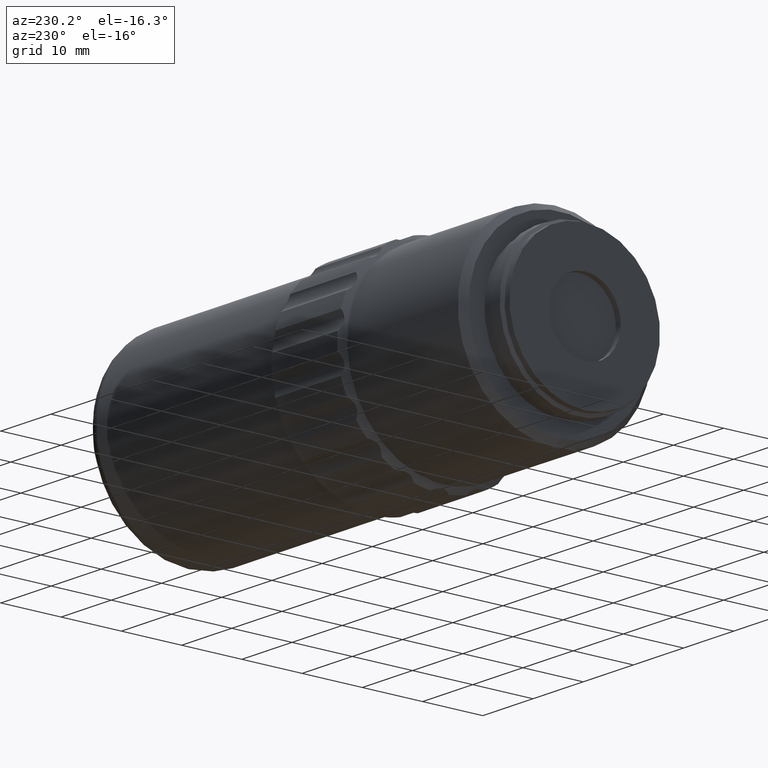
[diagram: clean part render]
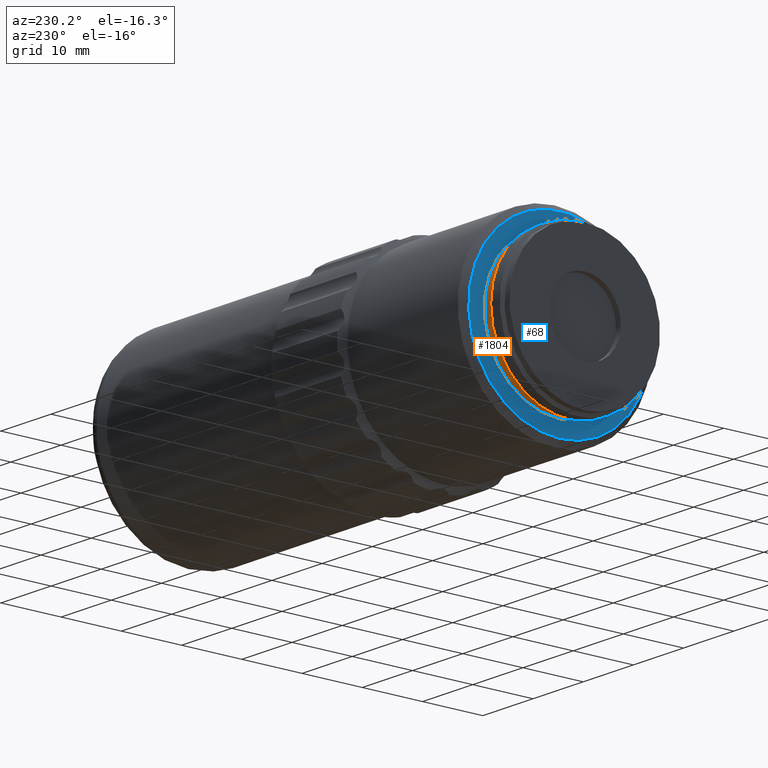
[diagram: same view with the hole feature highlighted: cylindrical wall and planar end face, labeled with their STEP entity ids]
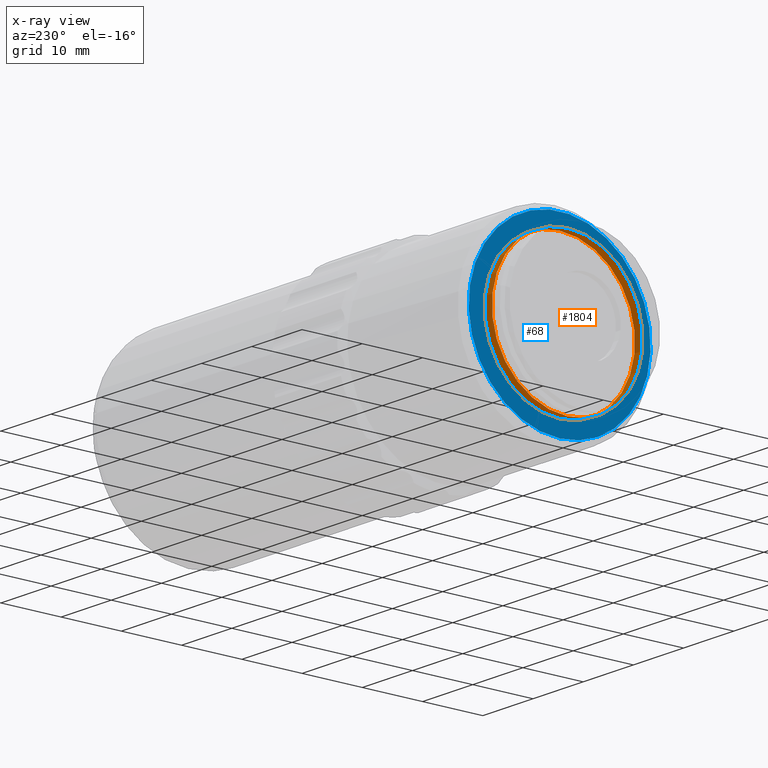
[diagram: x-ray of the same camera — body ghosted, the hole faces saturated]
A machine part, auxiliary view. The highlighted faces form one hole feature of diameter 25 mm: the cylindrical wall (entity #1804, orange) and its adjacent planar end face (entity #68, blue) — they share a circular edge in the B-rep.
The next image is the same camera in x-ray (body ghosted, the hole faces saturated) — the bore reads through the body.
Wall:
#10 = CARTESIAN_POINT ( 'NONE',  ( -4.553141965121201729, 46.02096199999999726, 12.50000000000000000 ) ) ;
#48 = CIRCLE ( 'NONE', #1205, 12.50000000000000000 ) ;
#70 = DIRECTION ( 'NONE',  ( 1.000000000000000000, -0.000000000000000000, -0.000000000000000000 ) ) ;
#301 = DIRECTION ( 'NONE',  ( 0.000000000000000000, 0.000000000000000000, 1.000000000000000000 ) ) ;
#347 = ORIENTED_EDGE ( 'NONE', *, *, #1817, .F. ) ;
#448 = FACE_OUTER_BOUND ( 'NONE', #1636, .T. ) ;
#544 = EDGE_LOOP ( 'NONE', ( #1924 ) ) ;
#582 = EDGE_CURVE ( 'NONE', #1606, #1606, #48, .T. ) ;
#710 = CARTESIAN_POINT ( 'NONE',  ( -6.053141965121201729, 46.02096199999999726, 0.000000000000000000 ) ) ;
#774 = DIRECTION ( 'NONE',  ( -1.000000000000000000, 0.000000000000000000, 0.000000000000000000 ) ) ;
#991 = CARTESIAN_POINT ( 'NONE',  ( -6.053141965121201729, 46.02096199999999726, 12.50000000000000000 ) ) ;
#1137 = CARTESIAN_POINT ( 'NONE',  ( -5.303141965121202617, 46.02096199999999726, 0.000000000000000000 ) ) ;
#1205 = AXIS2_PLACEMENT_3D ( 'NONE', #710, #70, #1867 ) ;
#1451 = AXIS2_PLACEMENT_3D ( 'NONE', #1137, #774, #2074 ) ;
#1454 = DIRECTION ( 'NONE',  ( 1.000000000000000000, -0.000000000000000000, -0.000000000000000000 ) ) ;
#1606 = VERTEX_POINT ( 'NONE', #991 ) ;
#1636 = EDGE_LOOP ( 'NONE', ( #347 ) ) ;
#1688 = AXIS2_PLACEMENT_3D ( 'NONE', #2065, #1454, #301 ) ;
#1804 = ADVANCED_FACE ( 'NONE', ( #448, #1926 ), #1915, .T. ) ;
#1817 = EDGE_CURVE ( 'NONE', #2097, #2097, #1956, .T. ) ;
#1867 = DIRECTION ( 'NONE',  ( 0.000000000000000000, 0.000000000000000000, 1.000000000000000000 ) ) ;
#1915 = CYLINDRICAL_SURFACE ( 'NONE', #1451, 12.50000000000000000 ) ;
#1924 = ORIENTED_EDGE ( 'NONE', *, *, #582, .T. ) ;
#1926 = FACE_OUTER_BOUND ( 'NONE', #544, .T. ) ;
#1956 = CIRCLE ( 'NONE', #1688, 12.50000000000000000 ) ;
#2065 = CARTESIAN_POINT ( 'NONE',  ( -4.553141965121201729, 46.02096199999999726, 0.000000000000000000 ) ) ;
#2074 = DIRECTION ( 'NONE',  ( 0.000000000000000000, 0.000000000000000000, 1.000000000000000000 ) ) ;
#2097 = VERTEX_POINT ( 'NONE', #10 ) ;
End face:
#10 = CARTESIAN_POINT ( 'NONE',  ( -4.553141965121201729, 46.02096199999999726, 12.50000000000000000 ) ) ;
#68 = ADVANCED_FACE ( 'NONE', ( #1810, #655 ), #1673, .T. ) ;
#91 = EDGE_CURVE ( 'NONE', #1438, #1438, #490, .T. ) ;
#301 = DIRECTION ( 'NONE',  ( 0.000000000000000000, 0.000000000000000000, 1.000000000000000000 ) ) ;
#490 = CIRCLE ( 'NONE', #1690, 15.09999999999999964 ) ;
#497 = CARTESIAN_POINT ( 'NONE',  ( -4.553141965121199064, 46.02096199999999726, -15.09999999999999964 ) ) ;
#655 = FACE_OUTER_BOUND ( 'NONE', #1381, .T. ) ;
#733 = AXIS2_PLACEMENT_3D ( 'NONE', #850, #828, #1663 ) ;
#828 = DIRECTION ( 'NONE',  ( -1.000000000000000000, 0.000000000000000000, 0.000000000000000000 ) ) ;
#850 = CARTESIAN_POINT ( 'NONE',  ( -4.553141965121201729, 60.32096200000000863, 0.000000000000000000 ) ) ;
#941 = EDGE_LOOP ( 'NONE', ( #1807 ) ) ;
#1013 = DIRECTION ( 'NONE',  ( 1.000000000000000000, 0.000000000000000000, -5.387339987505611015E-17 ) ) ;
#1150 = DIRECTION ( 'NONE',  ( -5.744117470121878474E-17, 0.000000000000000000, -1.000000000000000000 ) ) ;
#1358 = CARTESIAN_POINT ( 'NONE',  ( -4.553141965121198176, 46.02096199999999726, 5.387339987505588212E-17 ) ) ;
#1381 = EDGE_LOOP ( 'NONE', ( #1570 ) ) ;
#1438 = VERTEX_POINT ( 'NONE', #497 ) ;
#1454 = DIRECTION ( 'NONE',  ( 1.000000000000000000, -0.000000000000000000, -0.000000000000000000 ) ) ;
#1570 = ORIENTED_EDGE ( 'NONE', *, *, #91, .F. ) ;
#1663 = DIRECTION ( 'NONE',  ( 0.000000000000000000, 0.000000000000000000, 1.000000000000000000 ) ) ;
#1673 = PLANE ( 'NONE',  #733 ) ;
#1688 = AXIS2_PLACEMENT_3D ( 'NONE', #2065, #1454, #301 ) ;
#1690 = AXIS2_PLACEMENT_3D ( 'NONE', #1358, #1013, #1150 ) ;
#1807 = ORIENTED_EDGE ( 'NONE', *, *, #1817, .T. ) ;
#1810 = FACE_BOUND ( 'NONE', #941, .T. ) ;
#1817 = EDGE_CURVE ( 'NONE', #2097, #2097, #1956, .T. ) ;
#1956 = CIRCLE ( 'NONE', #1688, 12.50000000000000000 ) ;
#2065 = CARTESIAN_POINT ( 'NONE',  ( -4.553141965121201729, 46.02096199999999726, 0.000000000000000000 ) ) ;
#2097 = VERTEX_POINT ( 'NONE', #10 ) ;